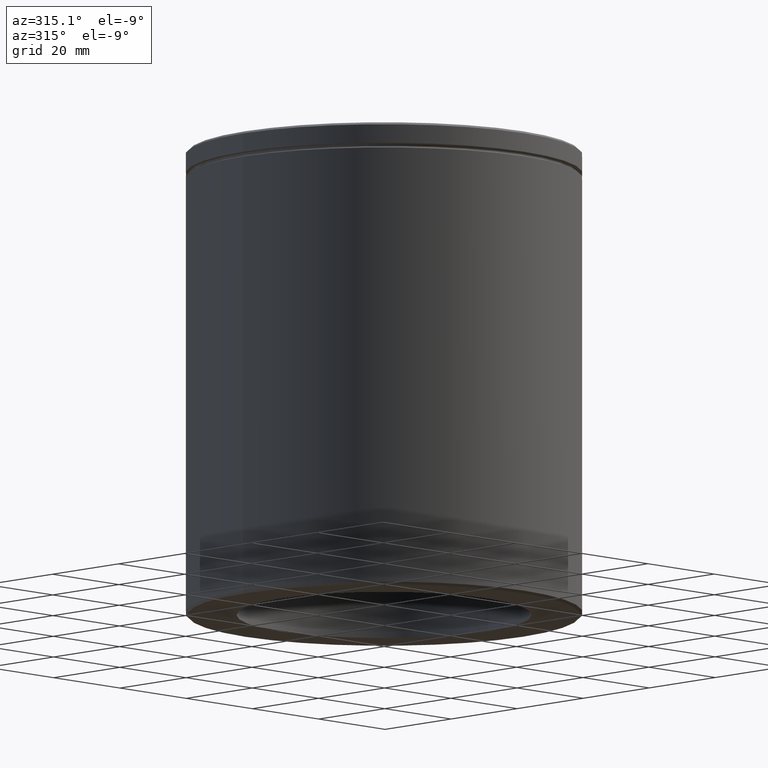
[diagram: clean part render]
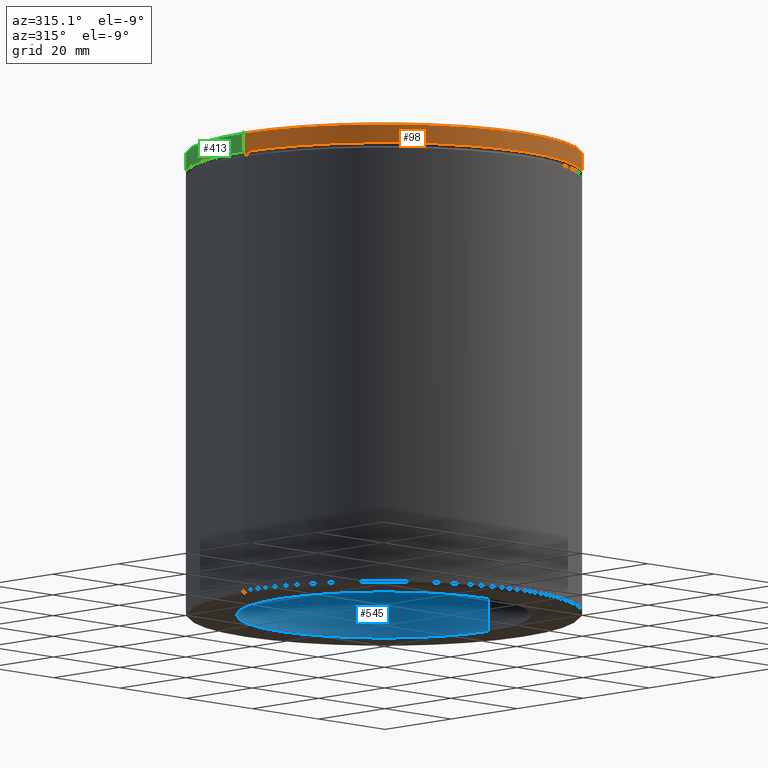
[diagram: same view with three faces highlighted in distinct colors, each labeled with its STEP entity id]
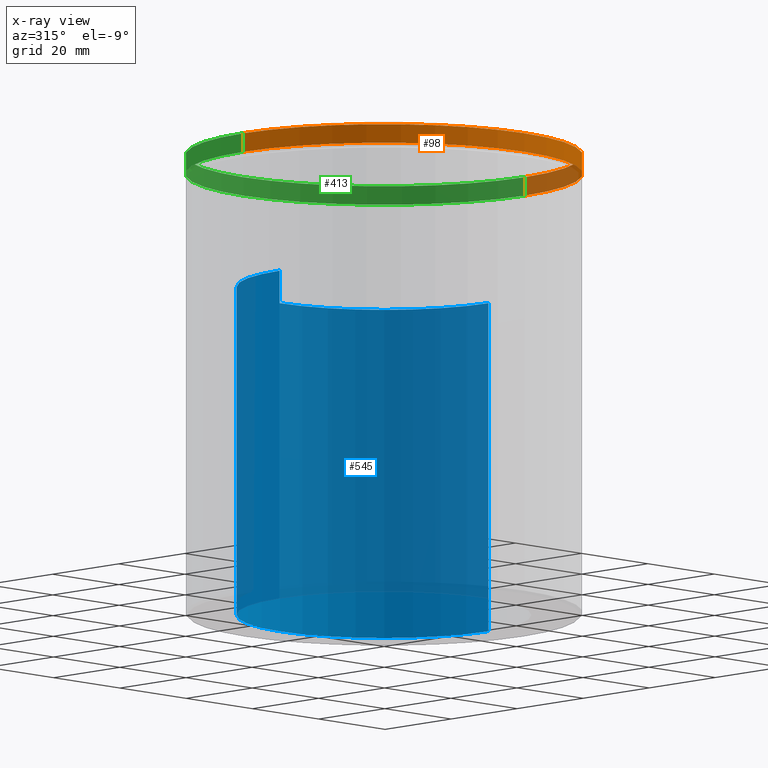
[diagram: x-ray of the same camera — body ghosted, the three highlighted faces saturated]
A machine part, auxiliary view with three faces highlighted in distinct colors.
The next image is the same camera in x-ray (body ghosted, the three faces saturated) — at least one of them is partly hidden behind the body in this view.
Their STEP definitions:

[orange] entity #98 — the highlighted cylindrical surface (partial cylindrical patch) has radius 42.5 mm, axis along (-0, -0, 1).
#23 = VERTEX_POINT ( 'NONE', #241 ) ;
#28 = CARTESIAN_POINT ( 'NONE',  ( 0.000000000000000000, 0.000000000000000000, -4.500000000000000888 ) ) ;
#33 = DIRECTION ( 'NONE',  ( -0.000000000000000000, -0.000000000000000000, 1.000000000000000000 ) ) ;
#44 = ORIENTED_EDGE ( 'NONE', *, *, #182, .T. ) ;
#77 = CARTESIAN_POINT ( 'NONE',  ( 0.000000000000000000, 0.000000000000000000, -0.5000000000000004441 ) ) ;
#92 = DIRECTION ( 'NONE',  ( -0.000000000000000000, -0.000000000000000000, 1.000000000000000000 ) ) ;
#93 = EDGE_LOOP ( 'NONE', ( #218, #223, #136, #44 ) ) ;
#98 = ADVANCED_FACE ( 'NONE', ( #503 ), #107, .T. ) ;
#105 = AXIS2_PLACEMENT_3D ( 'NONE', #282, #456, #409 ) ;
#107 = CYLINDRICAL_SURFACE ( 'NONE', #105, 42.50000000000000000 ) ;
#136 = ORIENTED_EDGE ( 'NONE', *, *, #235, .T. ) ;
#159 = CARTESIAN_POINT ( 'NONE',  ( 42.50000000000000000, 0.000000000000000000, -4.500000000000000888 ) ) ;
#182 = EDGE_CURVE ( 'NONE', #23, #334, #498, .T. ) ;
#188 = VECTOR ( 'NONE', #33, 1000.000000000000000 ) ;
#208 = VERTEX_POINT ( 'NONE', #159 ) ;
#210 = DIRECTION ( 'NONE',  ( -0.000000000000000000, -0.000000000000000000, 1.000000000000000000 ) ) ;
#218 = ORIENTED_EDGE ( 'NONE', *, *, #429, .F. ) ;
#223 = ORIENTED_EDGE ( 'NONE', *, *, #327, .T. ) ;
#231 = CARTESIAN_POINT ( 'NONE',  ( -42.50000000000000000, 5.204748896376250896E-15, -4.500000000000000888 ) ) ;
#235 = EDGE_CURVE ( 'NONE', #208, #23, #474, .T. ) ;
#241 = CARTESIAN_POINT ( 'NONE',  ( 42.50000000000000000, 0.000000000000000000, -0.5000000000000004441 ) ) ;
#282 = CARTESIAN_POINT ( 'NONE',  ( 0.000000000000000000, 0.000000000000000000, 0.000000000000000000 ) ) ;
#327 = EDGE_CURVE ( 'NONE', #399, #208, #362, .T. ) ;
#334 = VERTEX_POINT ( 'NONE', #525 ) ;
#343 = AXIS2_PLACEMENT_3D ( 'NONE', #77, #515, #415 ) ;
#351 = LINE ( 'NONE', #441, #372 ) ;
#362 = CIRCLE ( 'NONE', #384, 42.50000000000000000 ) ;
#372 = VECTOR ( 'NONE', #92, 1000.000000000000000 ) ;
#374 = CARTESIAN_POINT ( 'NONE',  ( 42.50000000000000000, 0.000000000000000000, 0.000000000000000000 ) ) ;
#381 = DIRECTION ( 'NONE',  ( 1.000000000000000000, 0.000000000000000000, 0.000000000000000000 ) ) ;
#384 = AXIS2_PLACEMENT_3D ( 'NONE', #28, #210, #381 ) ;
#399 = VERTEX_POINT ( 'NONE', #231 ) ;
#409 = DIRECTION ( 'NONE',  ( 1.000000000000000000, 0.000000000000000000, 0.000000000000000000 ) ) ;
#415 = DIRECTION ( 'NONE',  ( 1.000000000000000000, 0.000000000000000000, 0.000000000000000000 ) ) ;
#429 = EDGE_CURVE ( 'NONE', #399, #334, #351, .T. ) ;
#441 = CARTESIAN_POINT ( 'NONE',  ( -42.50000000000000000, 5.204748896376250896E-15, 0.000000000000000000 ) ) ;
#456 = DIRECTION ( 'NONE',  ( -0.000000000000000000, -0.000000000000000000, 1.000000000000000000 ) ) ;
#474 = LINE ( 'NONE', #374, #188 ) ;
#498 = CIRCLE ( 'NONE', #343, 42.50000000000000000 ) ;
#503 = FACE_OUTER_BOUND ( 'NONE', #93, .T. ) ;
#515 = DIRECTION ( 'NONE',  ( 0.000000000000000000, 0.000000000000000000, -1.000000000000000000 ) ) ;
#525 = CARTESIAN_POINT ( 'NONE',  ( -42.50000000000000000, 5.204748896376250896E-15, -0.5000000000000004441 ) ) ;

[blue] entity #545 — the highlighted cylindrical surface (partial cylindrical patch) has radius 31.5 mm, axis along (-0, -0, -1).
#4 = EDGE_LOOP ( 'NONE', ( #251, #79, #423, #489 ) ) ;
#8 = VERTEX_POINT ( 'NONE', #397 ) ;
#14 = CARTESIAN_POINT ( 'NONE',  ( 31.50000000000000000, 3.857637417314162689E-15, -100.0000000000000000 ) ) ;
#36 = DIRECTION ( 'NONE',  ( -0.000000000000000000, -0.000000000000000000, -1.000000000000000000 ) ) ;
#62 = DIRECTION ( 'NONE',  ( -0.000000000000000000, -0.000000000000000000, -1.000000000000000000 ) ) ;
#65 = CYLINDRICAL_SURFACE ( 'NONE', #496, 31.50000000000000000 ) ;
#79 = ORIENTED_EDGE ( 'NONE', *, *, #354, .F. ) ;
#85 = DIRECTION ( 'NONE',  ( -1.000000000000000000, 0.000000000000000000, 0.000000000000000000 ) ) ;
#123 = DIRECTION ( 'NONE',  ( -1.000000000000000000, 0.000000000000000000, 0.000000000000000000 ) ) ;
#126 = CARTESIAN_POINT ( 'NONE',  ( 0.000000000000000000, 0.000000000000000000, -29.00000000000001066 ) ) ;
#127 = EDGE_CURVE ( 'NONE', #315, #133, #237, .T. ) ;
#133 = VERTEX_POINT ( 'NONE', #14 ) ;
#138 = CARTESIAN_POINT ( 'NONE',  ( -31.50000000000000000, 0.000000000000000000, -29.00000000000001066 ) ) ;
#141 = CIRCLE ( 'NONE', #213, 31.50000000000000000 ) ;
#172 = DIRECTION ( 'NONE',  ( -0.000000000000000000, -0.000000000000000000, -1.000000000000000000 ) ) ;
#213 = AXIS2_PLACEMENT_3D ( 'NONE', #553, #472, #335 ) ;
#224 = VECTOR ( 'NONE', #62, 1000.000000000000000 ) ;
#237 = LINE ( 'NONE', #540, #224 ) ;
#245 = VERTEX_POINT ( 'NONE', #330 ) ;
#251 = ORIENTED_EDGE ( 'NONE', *, *, #127, .F. ) ;
#281 = EDGE_CURVE ( 'NONE', #8, #133, #141, .T. ) ;
#315 = VERTEX_POINT ( 'NONE', #328 ) ;
#328 = CARTESIAN_POINT ( 'NONE',  ( 31.50000000000000000, 3.857637417314162689E-15, -29.00000000000001066 ) ) ;
#330 = CARTESIAN_POINT ( 'NONE',  ( -31.50000000000000000, 0.000000000000000000, -29.00000000000001066 ) ) ;
#335 = DIRECTION ( 'NONE',  ( -1.000000000000000000, 0.000000000000000000, 0.000000000000000000 ) ) ;
#344 = VECTOR ( 'NONE', #172, 1000.000000000000000 ) ;
#354 = EDGE_CURVE ( 'NONE', #245, #315, #524, .T. ) ;
#378 = EDGE_CURVE ( 'NONE', #245, #8, #487, .T. ) ;
#386 = CARTESIAN_POINT ( 'NONE',  ( 0.000000000000000000, 0.000000000000000000, -29.00000000000001066 ) ) ;
#397 = CARTESIAN_POINT ( 'NONE',  ( -31.50000000000000000, 0.000000000000000000, -100.0000000000000000 ) ) ;
#423 = ORIENTED_EDGE ( 'NONE', *, *, #378, .T. ) ;
#439 = DIRECTION ( 'NONE',  ( 0.000000000000000000, 0.000000000000000000, -1.000000000000000000 ) ) ;
#452 = AXIS2_PLACEMENT_3D ( 'NONE', #126, #439, #85 ) ;
#460 = FACE_OUTER_BOUND ( 'NONE', #4, .T. ) ;
#472 = DIRECTION ( 'NONE',  ( 0.000000000000000000, 0.000000000000000000, -1.000000000000000000 ) ) ;
#487 = LINE ( 'NONE', #138, #344 ) ;
#489 = ORIENTED_EDGE ( 'NONE', *, *, #281, .T. ) ;
#496 = AXIS2_PLACEMENT_3D ( 'NONE', #386, #36, #123 ) ;
#524 = CIRCLE ( 'NONE', #452, 31.50000000000000000 ) ;
#540 = CARTESIAN_POINT ( 'NONE',  ( 31.50000000000000000, 3.857637417314162689E-15, -29.00000000000001066 ) ) ;
#545 = ADVANCED_FACE ( 'NONE', ( #460 ), #65, .F. ) ;
#553 = CARTESIAN_POINT ( 'NONE',  ( 0.000000000000000000, 0.000000000000000000, -100.0000000000000000 ) ) ;

[green] entity #413 — the highlighted cylindrical surface (partial cylindrical patch) has radius 42.5 mm, axis along (-0, -0, 1).
#23 = VERTEX_POINT ( 'NONE', #241 ) ;
#33 = DIRECTION ( 'NONE',  ( -0.000000000000000000, -0.000000000000000000, 1.000000000000000000 ) ) ;
#37 = ORIENTED_EDGE ( 'NONE', *, *, #255, .T. ) ;
#64 = DIRECTION ( 'NONE',  ( 1.000000000000000000, 0.000000000000000000, 0.000000000000000000 ) ) ;
#72 = AXIS2_PLACEMENT_3D ( 'NONE', #337, #560, #64 ) ;
#92 = DIRECTION ( 'NONE',  ( -0.000000000000000000, -0.000000000000000000, 1.000000000000000000 ) ) ;
#113 = EDGE_LOOP ( 'NONE', ( #257, #471, #37, #552 ) ) ;
#159 = CARTESIAN_POINT ( 'NONE',  ( 42.50000000000000000, 0.000000000000000000, -4.500000000000000888 ) ) ;
#176 = DIRECTION ( 'NONE',  ( 1.000000000000000000, 0.000000000000000000, 0.000000000000000000 ) ) ;
#188 = VECTOR ( 'NONE', #33, 1000.000000000000000 ) ;
#208 = VERTEX_POINT ( 'NONE', #159 ) ;
#222 = CYLINDRICAL_SURFACE ( 'NONE', #394, 42.50000000000000000 ) ;
#231 = CARTESIAN_POINT ( 'NONE',  ( -42.50000000000000000, 5.204748896376250896E-15, -4.500000000000000888 ) ) ;
#235 = EDGE_CURVE ( 'NONE', #208, #23, #474, .T. ) ;
#241 = CARTESIAN_POINT ( 'NONE',  ( 42.50000000000000000, 0.000000000000000000, -0.5000000000000004441 ) ) ;
#255 = EDGE_CURVE ( 'NONE', #334, #23, #504, .T. ) ;
#257 = ORIENTED_EDGE ( 'NONE', *, *, #369, .T. ) ;
#266 = AXIS2_PLACEMENT_3D ( 'NONE', #437, #433, #176 ) ;
#309 = DIRECTION ( 'NONE',  ( -0.000000000000000000, -0.000000000000000000, 1.000000000000000000 ) ) ;
#334 = VERTEX_POINT ( 'NONE', #525 ) ;
#337 = CARTESIAN_POINT ( 'NONE',  ( 0.000000000000000000, 0.000000000000000000, -0.5000000000000004441 ) ) ;
#345 = CARTESIAN_POINT ( 'NONE',  ( 0.000000000000000000, 0.000000000000000000, 0.000000000000000000 ) ) ;
#351 = LINE ( 'NONE', #441, #372 ) ;
#369 = EDGE_CURVE ( 'NONE', #208, #399, #512, .T. ) ;
#372 = VECTOR ( 'NONE', #92, 1000.000000000000000 ) ;
#374 = CARTESIAN_POINT ( 'NONE',  ( 42.50000000000000000, 0.000000000000000000, 0.000000000000000000 ) ) ;
#394 = AXIS2_PLACEMENT_3D ( 'NONE', #345, #309, #482 ) ;
#399 = VERTEX_POINT ( 'NONE', #231 ) ;
#413 = ADVANCED_FACE ( 'NONE', ( #430 ), #222, .T. ) ;
#429 = EDGE_CURVE ( 'NONE', #399, #334, #351, .T. ) ;
#430 = FACE_OUTER_BOUND ( 'NONE', #113, .T. ) ;
#433 = DIRECTION ( 'NONE',  ( -0.000000000000000000, -0.000000000000000000, 1.000000000000000000 ) ) ;
#437 = CARTESIAN_POINT ( 'NONE',  ( 0.000000000000000000, 0.000000000000000000, -4.500000000000000888 ) ) ;
#441 = CARTESIAN_POINT ( 'NONE',  ( -42.50000000000000000, 5.204748896376250896E-15, 0.000000000000000000 ) ) ;
#471 = ORIENTED_EDGE ( 'NONE', *, *, #429, .T. ) ;
#474 = LINE ( 'NONE', #374, #188 ) ;
#482 = DIRECTION ( 'NONE',  ( 1.000000000000000000, 0.000000000000000000, 0.000000000000000000 ) ) ;
#504 = CIRCLE ( 'NONE', #72, 42.50000000000000000 ) ;
#512 = CIRCLE ( 'NONE', #266, 42.50000000000000000 ) ;
#525 = CARTESIAN_POINT ( 'NONE',  ( -42.50000000000000000, 5.204748896376250896E-15, -0.5000000000000004441 ) ) ;
#552 = ORIENTED_EDGE ( 'NONE', *, *, #235, .F. ) ;
#560 = DIRECTION ( 'NONE',  ( 0.000000000000000000, 0.000000000000000000, -1.000000000000000000 ) ) ;